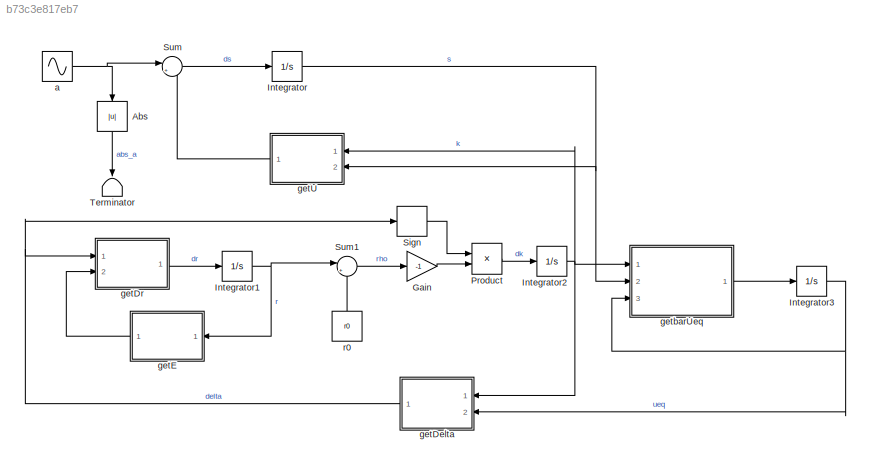
MODEL slx_b73c3e817eb7
KIND model
CONFIG AbsTol = auto
CONFIG EnableMultiTasking = off
CONFIG FixedStep = 0.001
CONFIG MaxStep = auto
CONFIG MinStep = auto
CONFIG RelTol = 1e-3
CONFIG SampleTimeConstraint = Unconstrained
CONFIG SolverName = FixedStepAuto
CONFIG StartTime = 0.0
CONFIG StopTime = 10
BLOCK [Abs] Abs
  NameLocation = left
  SaturateOnIntegerOverflow = off
BLOCK [Gain] Gain
  Gain = -1
BLOCK [Integrator] Integrator
  Ports = [1, 1]
BLOCK [Integrator] Integrator1
  Ports = [1, 1]
BLOCK [Integrator] Integrator2
  Ports = [1, 1]
BLOCK [Integrator] Integrator3
  Ports = [1, 1]
BLOCK [Product] Product
  Ports = [2, 1]
BLOCK [Signum] Sign
BLOCK [Sum] Sum
  Inputs = |++
  Ports = [2, 1]
BLOCK [Sum] Sum1
  Inputs = |++
  Ports = [2, 1]
BLOCK [Terminator] Terminator
  NameLocation = left
BLOCK [Sin] a
  Ports = [0, 1]
  SampleTime = 0
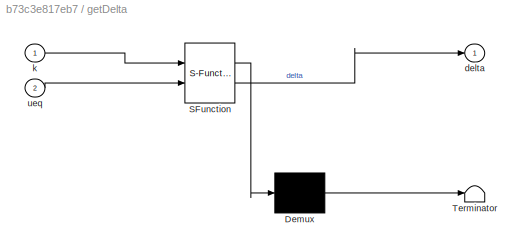
BLOCK [SubSystem] getDelta
  ErrorFcn = Stateflow.Translate.translate
  NameLocation = top
  PermitHierarchicalResolution = ExplicitOnly
  Ports = [2, 1]
  RequestExecContextInheritance = off
  SFBlockType = MATLAB Function
  TreatAsAtomicUnit = on
BLOCK [Demux] getDelta/ Demux 
  Outputs = 1
  Ports = [1, 1]
BLOCK [S-Function] getDelta/ SFunction 
  EnableBusSupport = on
  FunctionName = sf_sfun
  PortCounts = [2 2]
  Ports = [2, 2]
  SFcnIsStateOwnerBlock = off
  SFunctionDeploymentMode = off
  Tag = Stateflow S-Function 4
BLOCK [Terminator] getDelta/ Terminator 
BLOCK [Outport] getDelta/delta
BLOCK [Inport] getDelta/k
BLOCK [Inport] getDelta/ueq
  Port = 2
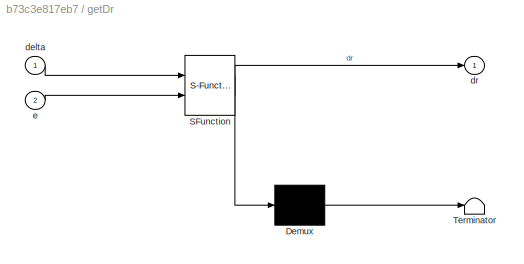
BLOCK [SubSystem] getDr
  ErrorFcn = Stateflow.Translate.translate
  PermitHierarchicalResolution = ExplicitOnly
  Ports = [2, 1]
  RequestExecContextInheritance = off
  SFBlockType = MATLAB Function
  TreatAsAtomicUnit = on
BLOCK [Demux] getDr/ Demux 
  Outputs = 1
  Ports = [1, 1]
BLOCK [S-Function] getDr/ SFunction 
  EnableBusSupport = on
  FunctionName = sf_sfun
  PortCounts = [2 2]
  Ports = [2, 2]
  SFcnIsStateOwnerBlock = off
  SFunctionDeploymentMode = off
  Tag = Stateflow S-Function 2
BLOCK [Terminator] getDr/ Terminator 
BLOCK [Inport] getDr/delta
BLOCK [Outport] getDr/dr
BLOCK [Inport] getDr/e
  Port = 2
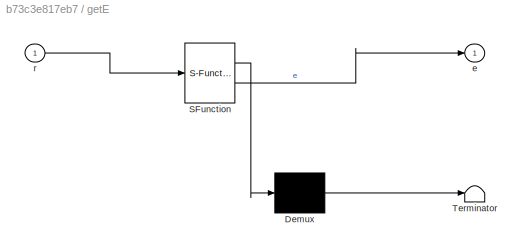
BLOCK [SubSystem] getE
  ErrorFcn = Stateflow.Translate.translate
  NameLocation = top
  PermitHierarchicalResolution = ExplicitOnly
  Ports = [1, 1]
  RequestExecContextInheritance = off
  SFBlockType = MATLAB Function
  TreatAsAtomicUnit = on
BLOCK [Demux] getE/ Demux 
  Outputs = 1
  Ports = [1, 1]
BLOCK [S-Function] getE/ SFunction 
  EnableBusSupport = on
  FunctionName = sf_sfun
  PortCounts = [1 2]
  Ports = [1, 2]
  SFcnIsStateOwnerBlock = off
  SFunctionDeploymentMode = off
  Tag = Stateflow S-Function 1
BLOCK [Terminator] getE/ Terminator 
BLOCK [Outport] getE/e
BLOCK [Inport] getE/r
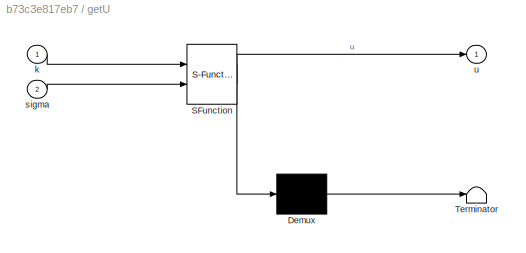
BLOCK [SubSystem] getU
  ErrorFcn = Stateflow.Translate.translate
  NameLocation = top
  PermitHierarchicalResolution = ExplicitOnly
  Ports = [2, 1]
  RequestExecContextInheritance = off
  SFBlockType = MATLAB Function
  TreatAsAtomicUnit = on
BLOCK [Demux] getU/ Demux 
  Outputs = 1
  Ports = [1, 1]
BLOCK [S-Function] getU/ SFunction 
  EnableBusSupport = on
  FunctionName = sf_sfun
  PortCounts = [2 2]
  Ports = [2, 2]
  SFcnIsStateOwnerBlock = off
  SFunctionDeploymentMode = off
  Tag = Stateflow S-Function 5
BLOCK [Terminator] getU/ Terminator 
BLOCK [Inport] getU/k
BLOCK [Inport] getU/sigma
  Port = 2
BLOCK [Outport] getU/u
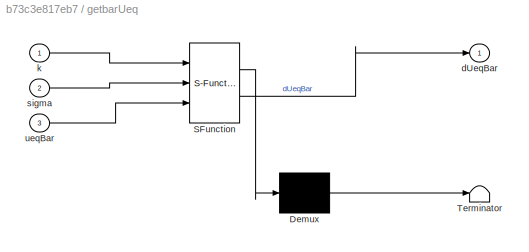
BLOCK [SubSystem] getbarUeq
  ErrorFcn = Stateflow.Translate.translate
  PermitHierarchicalResolution = ExplicitOnly
  Ports = [3, 1]
  RequestExecContextInheritance = off
  SFBlockType = MATLAB Function
  TreatAsAtomicUnit = on
BLOCK [Demux] getbarUeq/ Demux 
  Outputs = 1
  Ports = [1, 1]
BLOCK [S-Function] getbarUeq/ SFunction 
  EnableBusSupport = on
  FunctionName = sf_sfun
  PortCounts = [3 2]
  Ports = [3, 2]
  SFcnIsStateOwnerBlock = off
  SFunctionDeploymentMode = off
  Tag = Stateflow S-Function 3
BLOCK [Terminator] getbarUeq/ Terminator 
BLOCK [Outport] getbarUeq/dUeqBar
BLOCK [Inport] getbarUeq/k
BLOCK [Inport] getbarUeq/sigma
  Port = 2
BLOCK [Inport] getbarUeq/ueqBar
  Port = 3
BLOCK [Constant] r0
  NameLocation = right
  Value = r0
LINE Abs:1 -> Terminator:1
LINE Gain:1 -> Product:2
NET Integrator1:1 -> Sum1:1, getE:1
NET Integrator2:1 -> getDelta:1, getU:1, getbarUeq:1
NET Integrator3:1 -> getDelta:2, getbarUeq:3
NET Integrator:1 -> getU:2, getbarUeq:2
LINE Product:1 -> Integrator2:1
LINE Sign:1 -> Product:1
LINE Sum1:1 -> Gain:1
LINE Sum:1 -> Integrator:1
NET a:1 -> Abs:1, Sum:1
NET getDelta:1 -> Sign:1, getDr:1
LINE getDr:1 -> Integrator1:1
LINE getE:1 -> getDr:2
LINE getU:1 -> Sum:2
LINE getbarUeq:1 -> Integrator3:1
LINE r0:1 -> Sum1:2
note: NET lines group one-source signal fan-out (src -> all destinations, sorted); 1:1 wires keep LINE
CHART getDr states=1 transitions=1
  STATE_LABEL 'eML_blk_kernel()'
  STATE_LABEL 'SCRIPT:\nfunction dr = getDr(delta, e)\n    coder.extrinsic(\'evalin\');\n    gamma = 0.0;\n    r0 = 0.0;\n    \n    gamma = evalin(\'base\',\'gamma\');\n    r0 = evalin("base", \'r0\');\n\n    dr = gamma*abs(delta) + r0*sqrt(gamma)*sign(e);\nend\n'
CHART getbarUeq states=1 transitions=1
  STATE_LABEL 'eML_blk_kernel()'
  STATE_LABEL "SCRIPT:\nfunction dUeqBar = fun(k, sigma, ueqBar)\n    coder.extrinsic('evalin');\n    eta = 0.0;\n    tau = 0.0;\n    eta = evalin('base','eta');\n    tau = evalin('base','tau');\n    dUeqBar = 1/tau*(-(k+eta)*sign(sigma)-ueqBar);\nend\n"
CHART getDelta states=1 transitions=1
  STATE_LABEL 'eML_blk_kernel()'
  STATE_LABEL "SCRIPT:\nfunction delta = fcn(k, ueq)\n    coder.extrinsic('evalin');\n    alp = 0.0;\n    epsilon = 0.0;\n    \n    alp = evalin('base','alp');\n    epsilon = evalin('base','epsilon');\n    delta = k - 1/alp*abs(ueq)-epsilon;\nend\n"
CHART getU states=1 transitions=1
  STATE_LABEL 'eML_blk_kernel()'
  STATE_LABEL 'SCRIPT:\nfunction u = fcn(k, sigma)\n    coder.extrinsic(\'evalin\');\n\n    eta = 0.0;\n    \n    eta = evalin("base", \'eta\');\n\n    u = -(k+eta)*sign(sigma);\nend'
CHART getE states=1 transitions=1
  STATE_LABEL 'eML_blk_kernel()'
  STATE_LABEL "SCRIPT:\nfunction e = getE(r)\n   coder.extrinsic('evalin');\n\n   q = 0.0;\n   alp = 0.0;\n   a1 = 0.0;\n   \n   q = evalin('base','q');\n   alp = evalin('base','alp');\n   a1 = evalin('base','a1');\n   e =  (q*a1)/alp - r;\nend\n"
CHART  states=0 transitions=0
CHART  states=0 transitions=0
CHART  states=0 transitions=0
CHART  states=0 transitions=0
CHART  states=0 transitions=0
